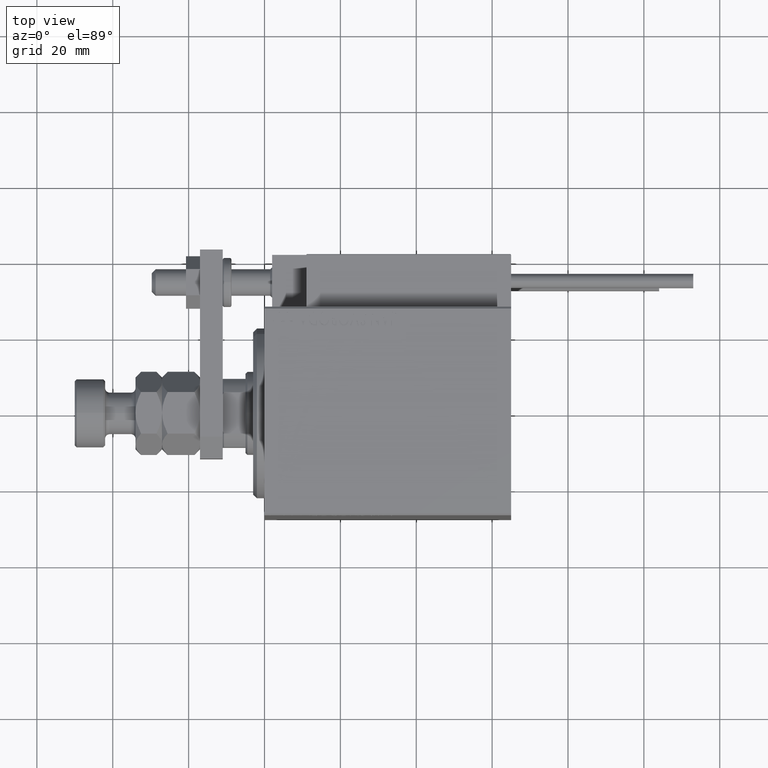
[diagram: clean part render]
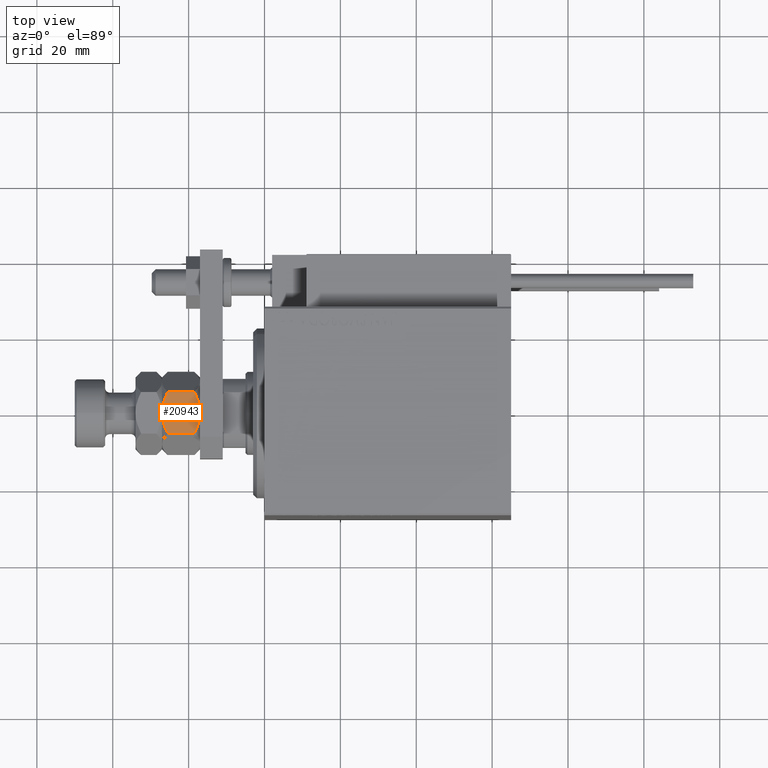
[diagram: same view with one face highlighted and labeled with its STEP entity id]
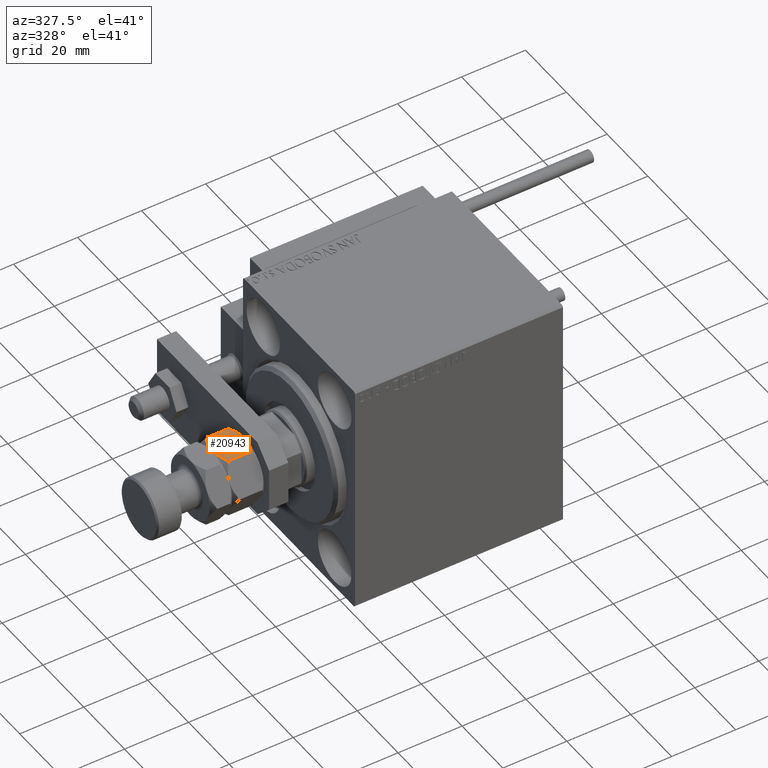
[diagram: same view with one face highlighted and labeled with its STEP entity id]
A machine part, top view. The second image highlights one B-rep face of the part: STEP entity #20943.
A second angle (auxiliary view) of the same face is appended — the face is thin or edge-on in the first view.
In plain terms, the highlighted planar face has unit normal (0, 0, -1).
Its self-contained STEP definition (entity closure, byte-faithful):
#793 = CARTESIAN_POINT ( 'NONE',  ( 9.500000000000001776, -3.284755346118645392, 9.457750254881879926 ) ) ;
#3165 = CARTESIAN_POINT ( 'NONE',  ( 9.499999999999998224, 1.900126426538964575, 0.1767061760391781811 ) ) ;
#3562 = B_SPLINE_CURVE_WITH_KNOTS ( 'NONE', 3,
 ( #51411, #48516, #31837, #4961, #793, #15944, #40422, #47748, #44100, #8369 ),
 .UNSPECIFIED., .F., .F.,
 ( 4, 2, 2, 2, 4 ),
 ( 0.01710995699817097551, 0.01854089553334494281, 0.01997183406851890664, 0.02140277260369287393, 0.02283371113886684123 ),
 .UNSPECIFIED. ) ;
#3602 = DIRECTION ( 'NONE',  ( -1.000000000000000000, 0.000000000000000000, 0.000000000000000000 ) ) ;
#4961 = CARTESIAN_POINT ( 'NONE',  ( 9.500000000000000000, -3.734178907538126868, 9.300492601481870736 ) ) ;
#6403 = ORIENTED_EDGE ( 'NONE', *, *, #23360, .F. ) ;
#6579 = B_SPLINE_CURVE_WITH_KNOTS ( 'NONE', 3,
 ( #30814, #15428, #46974, #18592, #31317, #26654, #3165, #7345, #34982, #30554 ),
 .UNSPECIFIED., .F., .F.,
 ( 4, 2, 2, 2, 4 ),
 ( 0.01710995699817097204, 0.01854089553334493934, 0.01997183406851890317, 0.02140277260369286699, 0.02283371113886683429 ),
 .UNSPECIFIED. ) ;
#7297 = VECTOR ( 'NONE', #18169, 1000.000000000000000 ) ;
#7345 = CARTESIAN_POINT ( 'NONE',  ( 9.500000000000003553, 0.9476109094485506423, 0.03551930501265142259 ) ) ;
#7987 = CARTESIAN_POINT ( 'NONE',  ( 9.500000000000000000, 0.000000000000000000, 0.000000000000000000 ) ) ;
#8369 = CARTESIAN_POINT ( 'NONE',  ( 9.499999999999996447, 0.000000000000000000, 10.00000000000000000 ) ) ;
#8654 = CARTESIAN_POINT ( 'NONE',  ( 9.500000000000000000, 0.9479236874768385279, 9.964222692415535931 ) ) ;
#9545 = CARTESIAN_POINT ( 'NONE',  ( 9.500000000000000000, -1.891038971533058222, 0.1751495044996551065 ) ) ;
#9950 = CARTESIAN_POINT ( 'NONE',  ( 9.500000000000000000, 5.484827557301445111, 8.530344885397115107 ) ) ;
#10218 = EDGE_LOOP ( 'NONE', ( #40465, #44320, #10225, #15027, #20027, #6403 ) ) ;
#10225 = ORIENTED_EDGE ( 'NONE', *, *, #39559, .F. ) ;
#10263 = VERTEX_POINT ( 'NONE', #44009 ) ;
#11006 = EDGE_CURVE ( 'NONE', #46752, #24174, #15303, .T. ) ;
#11149 = DIRECTION ( 'NONE',  ( -0.000000000000000000, -0.000000000000000000, -1.000000000000000000 ) ) ;
#11202 = B_SPLINE_CURVE_WITH_KNOTS ( 'NONE', 3,
 ( #50460, #30372, #13726, #9545, #37940, #29595, #18165, #46294 ),
 .UNSPECIFIED., .F., .F.,
 ( 4, 2, 2, 4 ),
 ( 0.02283371113886683429, 0.02427012866641926198, 0.02570654619397169313, 0.02857938124907655197 ),
 .UNSPECIFIED. ) ;
#12330 = CARTESIAN_POINT ( 'NONE',  ( 9.499999999999996447, 0.000000000000000000, 10.00000000000000000 ) ) ;
#12570 = EDGE_CURVE ( 'NONE', #34121, #10263, #3562, .T. ) ;
#13386 = EDGE_CURVE ( 'NONE', #34121, #50177, #26218, .T. ) ;
#13726 = CARTESIAN_POINT ( 'NONE',  ( 9.500000000000001776, -0.9479236874768383059, 0.03577730758446411724 ) ) ;
#15027 = ORIENTED_EDGE ( 'NONE', *, *, #12570, .F. ) ;
#15162 = EDGE_CURVE ( 'NONE', #24174, #28898, #6579, .T. ) ;
#15303 = LINE ( 'NONE', #22879, #21382 ) ;
#15428 = CARTESIAN_POINT ( 'NONE',  ( 9.499999999999998224, 5.056260213613243515, 1.255371442758782097 ) ) ;
#15944 = CARTESIAN_POINT ( 'NONE',  ( 9.500000000000001776, -2.368438208135735135, 9.719066414435323153 ) ) ;
#16323 = B_SPLINE_CURVE_WITH_KNOTS ( 'NONE', 3,
 ( #12330, #28201, #8654, #24547, #40450, #16740, #32626, #9950 ),
 .UNSPECIFIED., .F., .F.,
 ( 4, 2, 2, 4 ),
 ( 0.02283371113886684123, 0.02427012866641927238, 0.02570654619397170007, 0.02857938124907655891 ),
 .UNSPECIFIED. ) ;
#16740 = CARTESIAN_POINT ( 'NONE',  ( 9.500000000000003553, 3.751526451643774518, 9.324617500212358578 ) ) ;
#18005 = FACE_OUTER_BOUND ( 'NONE', #10218, .T. ) ;
#18165 = CARTESIAN_POINT ( 'NONE',  ( 9.500000000000001776, -4.631112555686343946, 1.042797613795335865 ) ) ;
#18169 = DIRECTION ( 'NONE',  ( -0.000000000000000000, -0.000000000000000000, -1.000000000000000000 ) ) ;
#18592 = CARTESIAN_POINT ( 'NONE',  ( 9.500000000000001776, 3.734178907538123315, 0.6995073985181263776 ) ) ;
#20027 = ORIENTED_EDGE ( 'NONE', *, *, #13386, .T. ) ;
#20859 = CARTESIAN_POINT ( 'NONE',  ( 9.500000000000000000, -5.484827557301446888, 1.469655114602885337 ) ) ;
#20943 = ADVANCED_FACE ( 'NONE', ( #18005 ), #22942, .F. ) ;
#21382 = VECTOR ( 'NONE', #11149, 1000.000000000000000 ) ;
#22744 = CARTESIAN_POINT ( 'NONE',  ( 9.500000000000000000, 5.484827557301445111, 8.530344885397115107 ) ) ;
#22879 = CARTESIAN_POINT ( 'NONE',  ( 9.500000000000000000, 5.484827557301445111, 10.00000000000000000 ) ) ;
#22942 = PLANE ( 'NONE',  #34048 ) ;
#23360 = EDGE_CURVE ( 'NONE', #28898, #50177, #11202, .T. ) ;
#24174 = VERTEX_POINT ( 'NONE', #46057 ) ;
#24547 = CARTESIAN_POINT ( 'NONE',  ( 9.500000000000001776, 1.891038971533058888, 9.824850495500342618 ) ) ;
#25960 = CARTESIAN_POINT ( 'NONE',  ( 9.500000000000000000, -5.484827557301446888, 10.00000000000000000 ) ) ;
#26218 = LINE ( 'NONE', #25960, #7297 ) ;
#26654 = CARTESIAN_POINT ( 'NONE',  ( 9.500000000000001776, 2.368438208135731138, 0.2809335855646788449 ) ) ;
#28201 = CARTESIAN_POINT ( 'NONE',  ( 9.500000000000000000, 0.4747921536566079292, 10.00000000000000178 ) ) ;
#28898 = VERTEX_POINT ( 'NONE', #7987 ) ;
#29595 = CARTESIAN_POINT ( 'NONE',  ( 9.500000000000003553, -3.751526451643773630, 0.6753824997876435310 ) ) ;
#30372 = CARTESIAN_POINT ( 'NONE',  ( 9.499999999999998224, -0.4747921536566084844, 6.860966872759830281E-17 ) ) ;
#30554 = CARTESIAN_POINT ( 'NONE',  ( 9.500000000000000000, 0.000000000000000000, 0.000000000000000000 ) ) ;
#30814 = CARTESIAN_POINT ( 'NONE',  ( 9.500000000000000000, 5.484827557301445999, 1.469655114602884671 ) ) ;
#31317 = CARTESIAN_POINT ( 'NONE',  ( 9.500000000000001776, 3.284755346118641839, 0.5422497451181170769 ) ) ;
#31837 = CARTESIAN_POINT ( 'NONE',  ( 9.500000000000001776, -4.619321229330173750, 8.944243860401861923 ) ) ;
#32626 = CARTESIAN_POINT ( 'NONE',  ( 9.500000000000003553, 4.631112555686342169, 8.957202386204668798 ) ) ;
#34048 = AXIS2_PLACEMENT_3D ( 'NONE', #51083, #3602, #51339 ) ;
#34121 = VERTEX_POINT ( 'NONE', #38191 ) ;
#34982 = CARTESIAN_POINT ( 'NONE',  ( 9.500000000000001776, 0.4729811324588404919, -6.776263578034400247E-17 ) ) ;
#37940 = CARTESIAN_POINT ( 'NONE',  ( 9.500000000000001776, -2.364456443984731759, 0.2797887937521522650 ) ) ;
#38191 = CARTESIAN_POINT ( 'NONE',  ( 9.500000000000000000, -5.484827557301447776, 8.530344885397115107 ) ) ;
#39559 = EDGE_CURVE ( 'NONE', #10263, #46752, #16323, .T. ) ;
#40422 = CARTESIAN_POINT ( 'NONE',  ( 9.500000000000001776, -1.900126426538966795, 9.823293823960822735 ) ) ;
#40450 = CARTESIAN_POINT ( 'NONE',  ( 9.500000000000001776, 2.364456443984732648, 9.720211206247849844 ) ) ;
#40465 = ORIENTED_EDGE ( 'NONE', *, *, #15162, .F. ) ;
#44009 = CARTESIAN_POINT ( 'NONE',  ( 9.499999999999996447, 0.000000000000000000, 10.00000000000000000 ) ) ;
#44100 = CARTESIAN_POINT ( 'NONE',  ( 9.500000000000001776, -0.4729811324588412691, 10.00000000000000000 ) ) ;
#44320 = ORIENTED_EDGE ( 'NONE', *, *, #11006, .F. ) ;
#46057 = CARTESIAN_POINT ( 'NONE',  ( 9.500000000000000000, 5.484827557301445999, 1.469655114602884671 ) ) ;
#46294 = CARTESIAN_POINT ( 'NONE',  ( 9.500000000000000000, -5.484827557301446888, 1.469655114602885337 ) ) ;
#46752 = VERTEX_POINT ( 'NONE', #22744 ) ;
#46974 = CARTESIAN_POINT ( 'NONE',  ( 9.500000000000000000, 4.619321229330167533, 1.055756139598136079 ) ) ;
#47748 = CARTESIAN_POINT ( 'NONE',  ( 9.500000000000001776, -0.9476109094485513085, 9.964480694987349452 ) ) ;
#48516 = CARTESIAN_POINT ( 'NONE',  ( 9.499999999999998224, -5.056260213613244403, 8.744628557241217237 ) ) ;
#50177 = VERTEX_POINT ( 'NONE', #20859 ) ;
#50460 = CARTESIAN_POINT ( 'NONE',  ( 9.500000000000000000, 0.000000000000000000, 0.000000000000000000 ) ) ;
#51083 = CARTESIAN_POINT ( 'NONE',  ( 9.500000000000000000, -5.484827557301446888, 10.00000000000000000 ) ) ;
#51339 = DIRECTION ( 'NONE',  ( 0.000000000000000000, 0.000000000000000000, 1.000000000000000000 ) ) ;
#51411 = CARTESIAN_POINT ( 'NONE',  ( 9.500000000000000000, -5.484827557301447776, 8.530344885397115107 ) ) ;